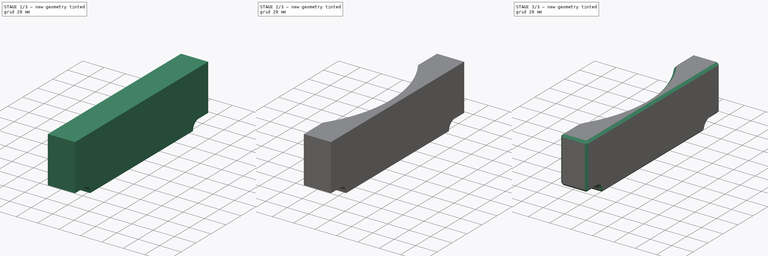
[diagram: build sequence overview — one tinted view per stage of 3, left to right]
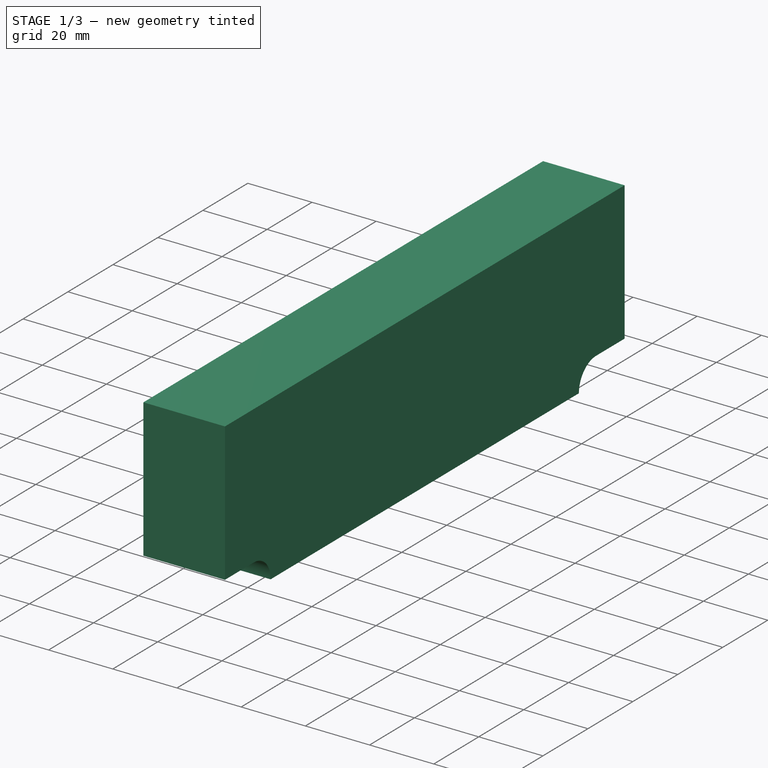
[diagram: stage 1 of 3 — iso view after this stage's code; geometry added in this stage tinted green]
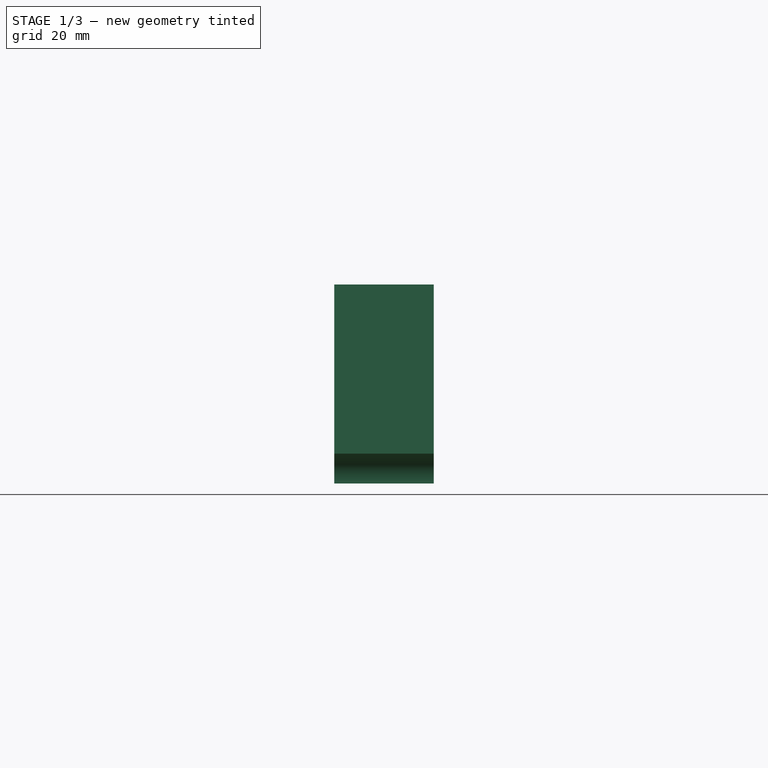
[diagram: stage 1 of 3 — front view after this stage's code; geometry added in this stage tinted green]
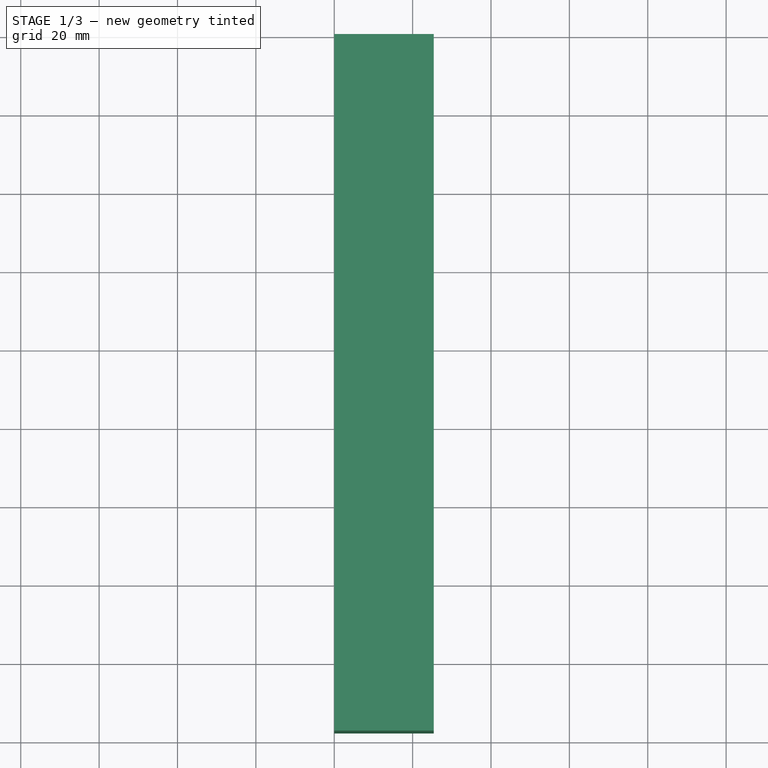
[diagram: stage 1 of 3 — top view after this stage's code; geometry added in this stage tinted green]
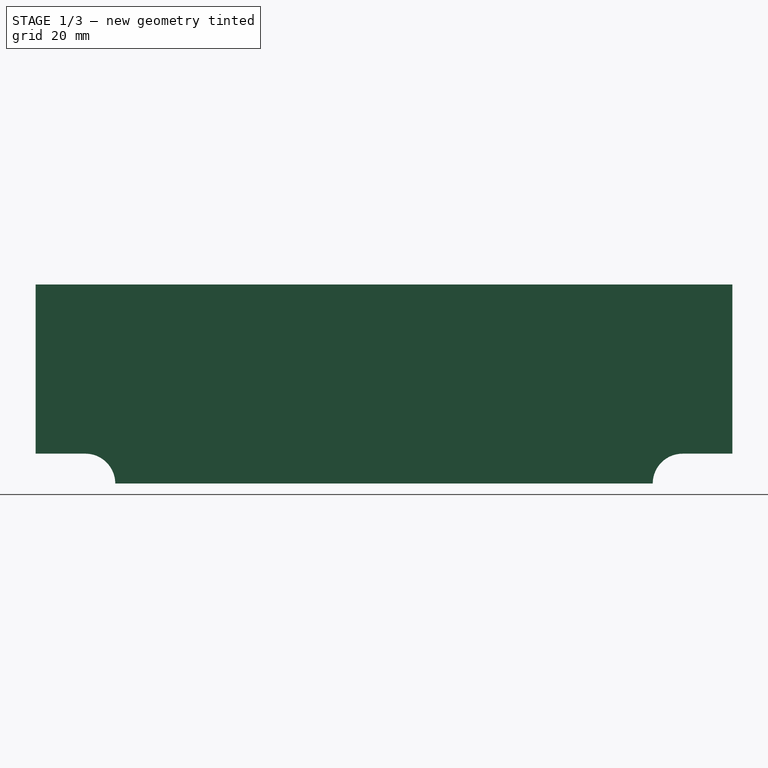
[diagram: stage 1 of 3 — right view after this stage's code; geometry added in this stage tinted green]
FCSTD DOCUMENT  (FreeCAD 1.0R38642 (Git))
Label: Towbar_Spacer
License: All rights reserved
LicenseURL: https://en.wikipedia.org/wiki/All_rights_reserved
objects: Sketcher::SketchObject×3, PartDesign::Pocket×2, PartDesign::Pad×1, PartDesign::Fillet×1, PartDesign::Chamfer×1, PartDesign::Body×1
note: 22 computed .brp shape members not serialized (recipe doc carries the construction recipe); baked Part::Feature solids carry a one-line shape summary decoded from their .brp

FEATURE [Sketcher::SketchObject] Sketch
  ArcFitTolerance = 1e-06
  AttachmentSupport = -> [XZ_Plane]
  FullyConstrained = true
  MakeInternals = false
  MapMode = 5
  Placement = pos=(0,0,0) rot=(1,0,0;1.5708rad)
  sketch-geometry (8):
    g0: LineSegment StartX=0 StartY=0 StartZ=0 EndX=25.4 EndY=0 EndZ=0
    g1: LineSegment StartX=25.4 StartY=0 StartZ=0 EndX=25.4 EndY=50.8 EndZ=0
    g2: LineSegment StartX=25.4 StartY=50.8 StartZ=0 EndX=0 EndY=50.8 EndZ=0
    g3: LineSegment StartX=0 StartY=50.8 StartZ=0 EndX=0 EndY=0 EndZ=0
    g4: GeomPoint X=0 Y=50.8 Z=0
    g5: GeomPoint X=0 Y=50.8 Z=0
    g6: GeomPoint X=0 Y=50.8 Z=0
    g7: GeomPoint X=0 Y=50.8 Z=0
  constraints (15):
    c: Coincident(g0,g-1)
    c: PointOnObject(g0,g-1)
    c: Coincident(g1,g0)
    c: Vertical(g1)
    c: Coincident(g2,g1)
    c: Horizontal(g2)
    c: Coincident(g3,g0)
    c: DistanceY(g1,g1) = 50.8
    c: Coincident(g4,g3)
    c: Coincident(g5,g2)
    c: Coincident(g6,g3)
    c: Coincident(g7,g2)
    c: Coincident(g3,g2)
    c: DistanceX(g2,g2) = 25.4
    c: DistanceX(g0,g0) = 25.4
FEATURE [PartDesign::Pad] Pad
  Direction = (0,-1,2e-16)
  Length = 177.8
  Length2 = 10
  Placement = pos=(0,0,0) rot=(1,0,0;1.5708rad)
  Profile = -> Sketch
  ReferenceAxis = -> Sketch [N_Axis]
  Refine = true
  Suppressed = false
  Type = 0
FEATURE [Sketcher::SketchObject] Sketch001
  ArcFitTolerance = 1e-06
  AttachmentSupport = -> [Pad]
  ExternalGeometry = -> [Pad]
  FullyConstrained = true
  MakeInternals = false
  MapMode = 5
  Placement = pos=(25.4,0,0) rot=(0.707107,0,0.707107;3.14159rad)
  sketch-geometry (8):
    g0: ArcOfCircle CenterX=3.67e-14 CenterY=165.1 CenterZ=0 NormalX=0 NormalY=0 NormalZ=1 AngleXU=0 Radius=7.62 StartAngle=4.71239 EndAngle=6.28319
    g1: ArcOfCircle CenterX=2.8e-15 CenterY=12.7 CenterZ=0 NormalX=0 NormalY=0 NormalZ=1 AngleXU=0 Radius=7.62 StartAngle=4.99e-14 EndAngle=1.5708
    g2: LineSegment StartX=7.62 StartY=165.1 StartZ=0 EndX=7.62 EndY=177.8 EndZ=0
    g3: LineSegment StartX=7.62 StartY=12.7 StartZ=0 EndX=7.62 EndY=-1.8e-15 EndZ=0
    g4: LineSegment StartX=3.53e-14 StartY=157.48 StartZ=0 EndX=3.95e-14 EndY=177.8 EndZ=0
    g5: LineSegment StartX=3.95e-14 StartY=177.8 StartZ=0 EndX=7.62 EndY=177.8 EndZ=0
    g6: LineSegment StartX=5e-15 StartY=20.32 StartZ=0 EndX=0 EndY=0 EndZ=0
    g7: LineSegment StartX=0 StartY=0 StartZ=0 EndX=7.62 EndY=-1.8e-15 EndZ=0
  constraints (22):
    c: PointOnObject(g0,g-6)
    c: PointOnObject(g0,g-6)
    c: PointOnObject(g1,g-6)
    c: PointOnObject(g1,g-6)
    c: Radius(g0) = 7.62
    c: Radius(g1) = 7.62
    c: PointOnObject(g2,g-3)
    c: Vertical(g2)
    c: PointOnObject(g3,g-5)
    c: Vertical(g3)
    c: Tangent(g3,g1) = 1.5708
    c: Tangent(g2,g0) = -1.5708
    c: Coincident(g4,g0)
    c: Coincident(g4,g-6)
    c: Coincident(g5,g4)
    c: Coincident(g5,g2)
    c: Coincident(g6,g1)
    c: Coincident(g6,g-1)
    c: Coincident(g7,g6)
    c: Coincident(g7,g3)
    c: DistanceY(g1,g0) = 137.16
    c: Equal(g4,g6)
FEATURE [PartDesign::Pocket] Pocket
  BaseFeature = -> Pad
  Direction = (-1,0,2e-16)
  Length = 5
  Length2 = 5
  Placement = pos=(0,0,0) rot=(1,0,0;1.5708rad)
  Profile = -> Sketch001 [Edge1,Edge2,Edge3,Edge4,Edge5,Edge6,Edge7,Edge8]
  ReferenceAxis = -> Sketch001 [N_Axis]
  Refine = true
  Suppressed = false
  Type = 1
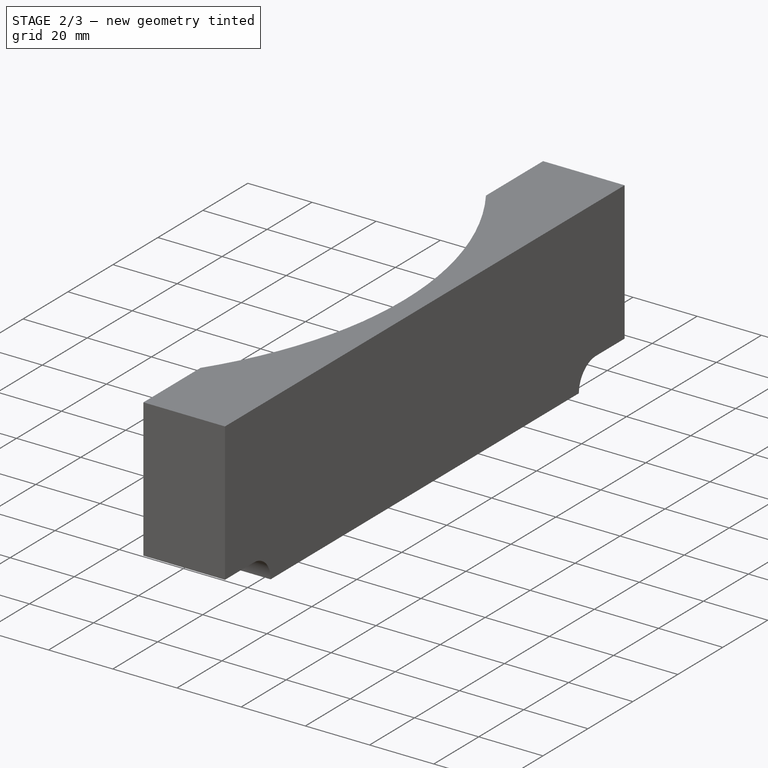
[diagram: stage 2 of 3 — iso view after this stage's code; geometry added in this stage tinted green]
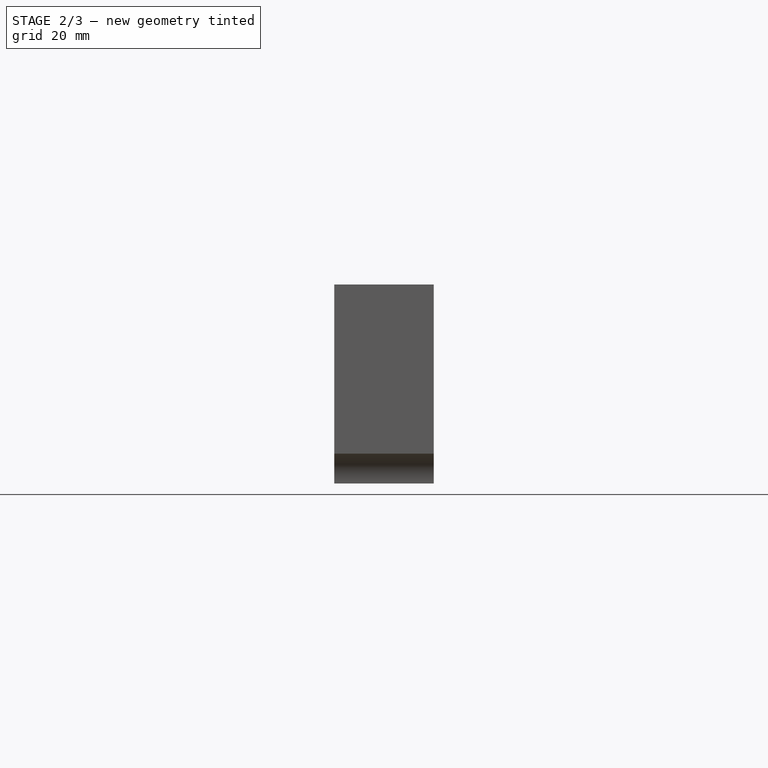
[diagram: stage 2 of 3 — front view after this stage's code; geometry added in this stage tinted green]
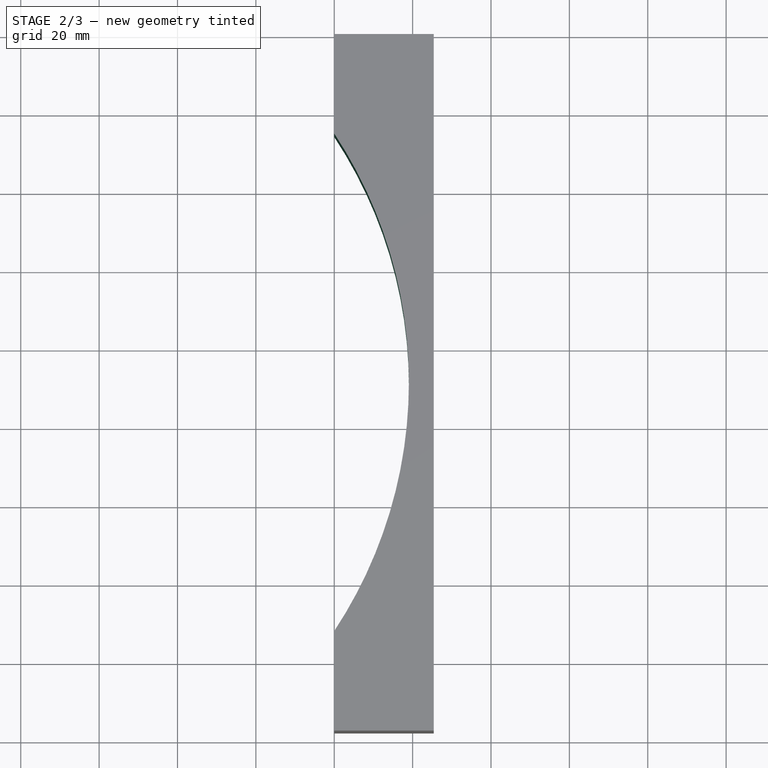
[diagram: stage 2 of 3 — top view after this stage's code; geometry added in this stage tinted green]
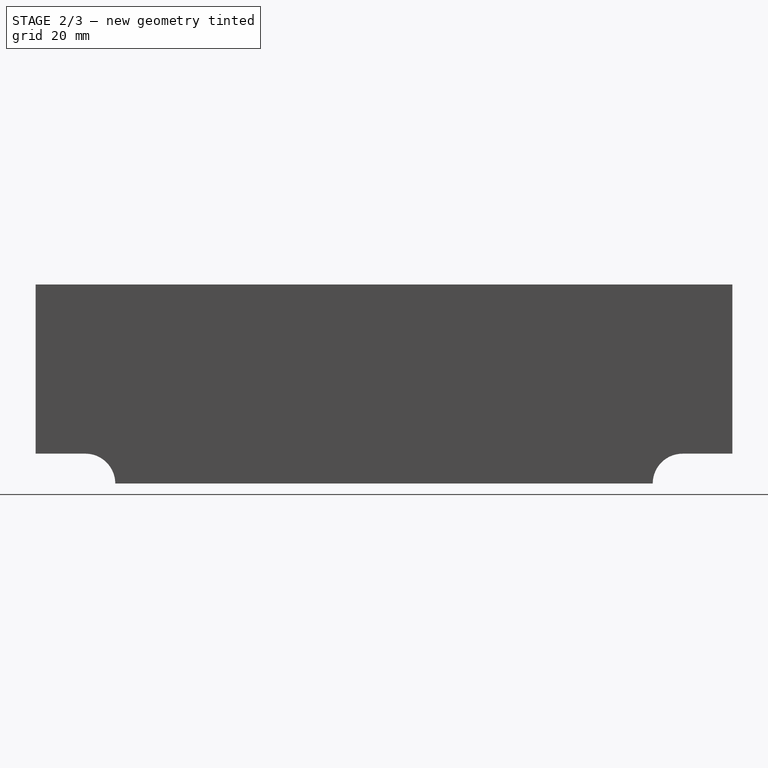
[diagram: stage 2 of 3 — right view after this stage's code; geometry added in this stage tinted green]
FEATURE [Sketcher::SketchObject] Sketch002
  ArcFitTolerance = 1e-06
  AttachmentSupport = -> [Pocket]
  ExternalGeometry = -> [Pocket]
  FullyConstrained = true
  MakeInternals = false
  MapMode = 5
  Placement = pos=(0,1.13e-14,50.8) rot=(0,0,1;3.14159rad)
  sketch-geometry (4):
    g0: LineSegment StartX=0 StartY=0 StartZ=0 EndX=1.42e-14 EndY=25.4 EndZ=0
    g1: LineSegment StartX=0 StartY=177.8 StartZ=0 EndX=-1.42e-14 EndY=152.4 EndZ=0
    g2: ArcOfCircle CenterX=96.3083 CenterY=88.9 CenterZ=0 NormalX=0 NormalY=0 NormalZ=1 AngleXU=0 Radius=115.358 StartAngle=2.55868 EndAngle=3.72451
    g3: LineSegment StartX=1.42e-14 StartY=25.4 StartZ=0 EndX=-1.42e-14 EndY=152.4 EndZ=0
  constraints (11):
    c: Coincident(g0,g-1)
    c: PointOnObject(g0,g-5)
    c: Coincident(g1,g-5)
    c: PointOnObject(g1,g-5)
    c: Coincident(g2,g1)
    c: Coincident(g2,g0)
    c: DistanceY(g1,g1) = 25.4
    c: DistanceY(g0,g0) = 25.4
    c: Distance(g2,g-3) = 6.35
    c: Coincident(g3,g0)
    c: Coincident(g3,g1)
FEATURE [PartDesign::Pocket] Pocket001
  BaseFeature = -> Pocket
  Direction = (0,0,-1)
  Length = 5
  Length2 = 5
  Placement = pos=(0,0,0) rot=(1,0,0;1.5708rad)
  Profile = -> Sketch002 [Edge3,Edge1]
  ReferenceAxis = -> Sketch002 [N_Axis]
  Refine = true
  Suppressed = false
  Type = 1
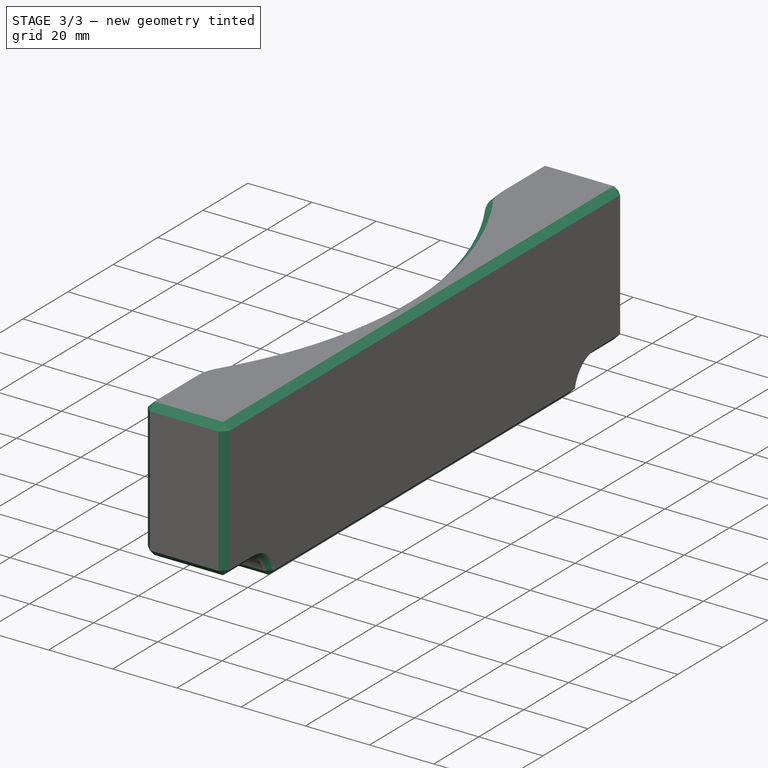
[diagram: stage 3 of 3 — iso view after this stage's code; geometry added in this stage tinted green]
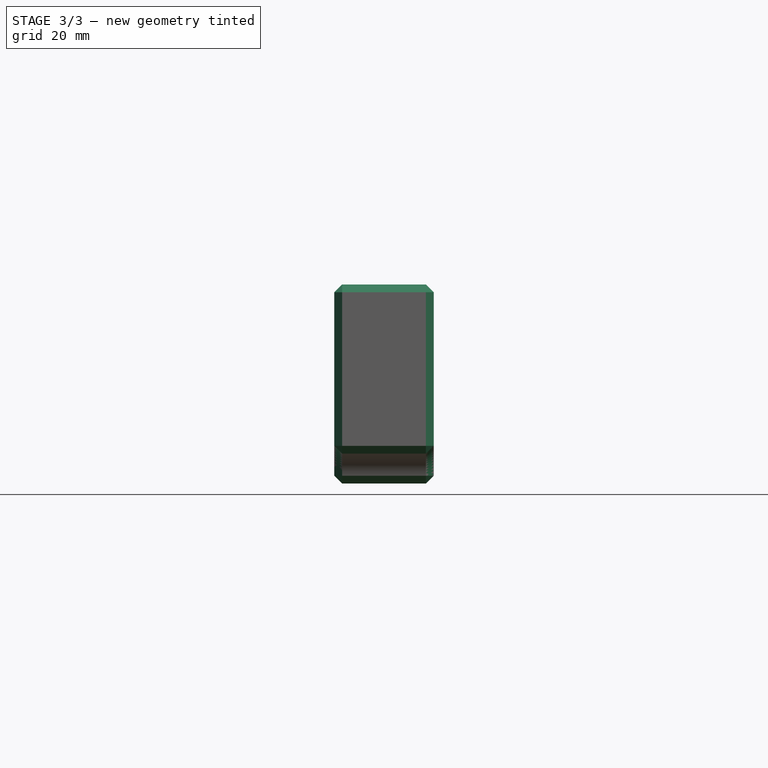
[diagram: stage 3 of 3 — front view after this stage's code; geometry added in this stage tinted green]
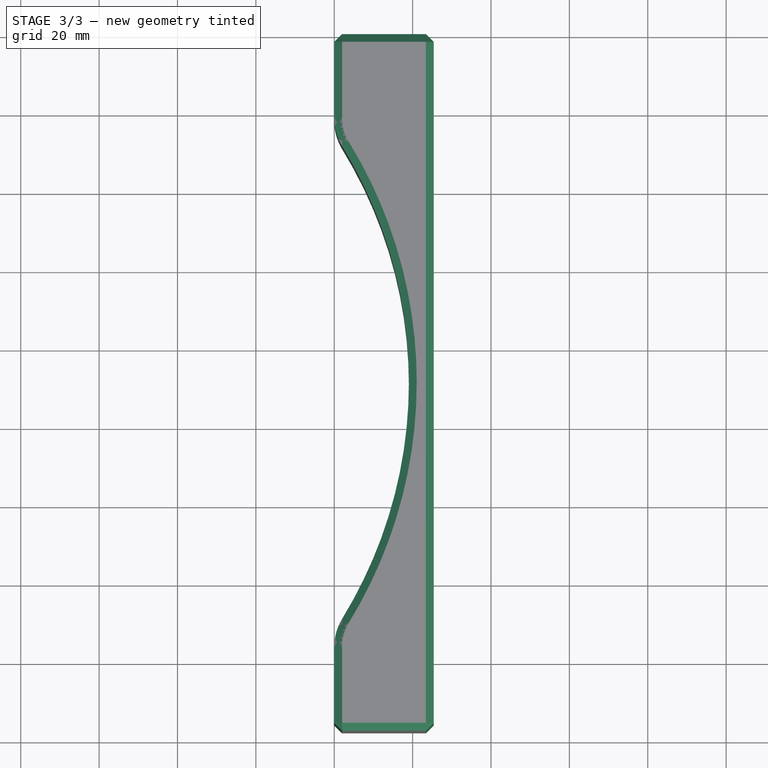
[diagram: stage 3 of 3 — top view after this stage's code; geometry added in this stage tinted green]
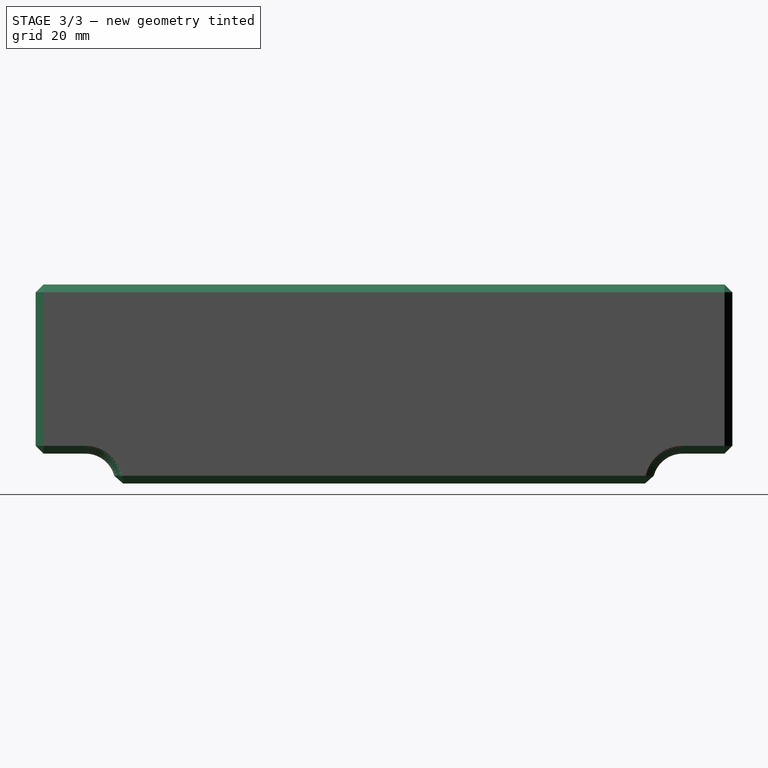
[diagram: stage 3 of 3 — right view after this stage's code; geometry added in this stage tinted green]
FEATURE [PartDesign::Fillet] Fillet
  Base = -> Pocket001 [Edge16,Edge21]
  BaseFeature = -> Pocket001
  Placement = pos=(0,0,0) rot=(1,0,0;1.5708rad)
  Radius = 14
  Refine = true
  SupportTransform = false
  Suppressed = false
  UseAllEdges = false
FEATURE [PartDesign::Chamfer] Chamfer
  Angle = 45
  Base = -> Fillet [Edge33,Edge23,Edge34,Edge11,Edge14,Edge18,Edge26,Edge30,Edge32,Edge22,Edge36,Edge13,Edge35,Edge24,Edge5,Edge16,Edge25,Edge20,Edge21,Edge31,Edge28,Edge10,Edge12,Edge7,Edge4,Edge2,Edge6,Edge8,Edge1,Edge3]
  BaseFeature = -> Fillet
  ChamferType = 0
  FlipDirection = false
  Placement = pos=(0,0,0) rot=(1,0,0;1.5708rad)
  Refine = true
  Size = 2
  Size2 = 1
  SupportTransform = false
  Suppressed = false
  UseAllEdges = false
FEATURE [PartDesign::Body] Body
  AllowCompound = false
  Group = -> [Sketch,Pad,Sketch001,Pocket,Sketch002,Pocket001,Fillet,Chamfer]
  Origin = -> Origin
  Tip = -> Chamfer
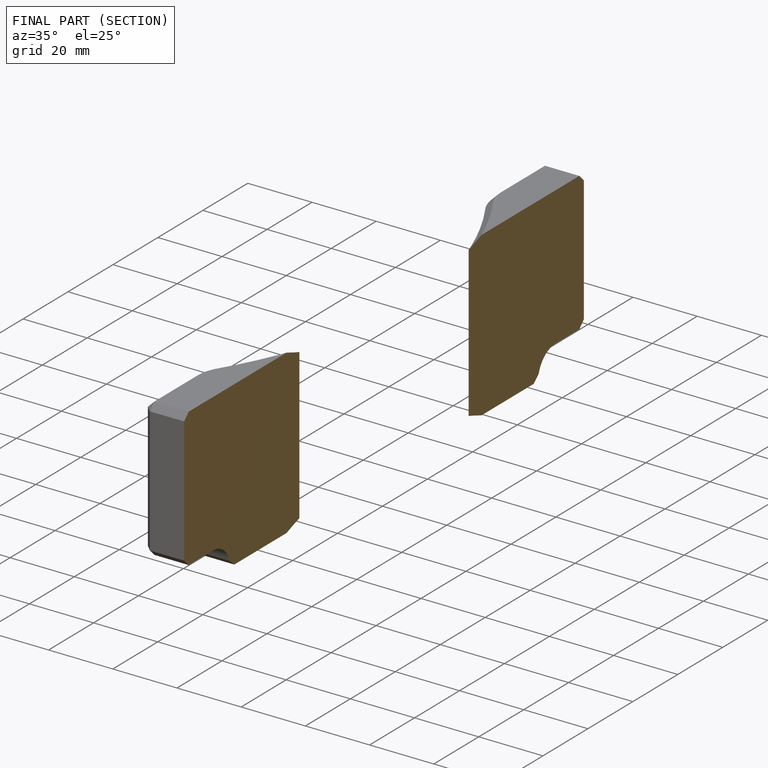
[diagram: finished part — half-section view (interior)]
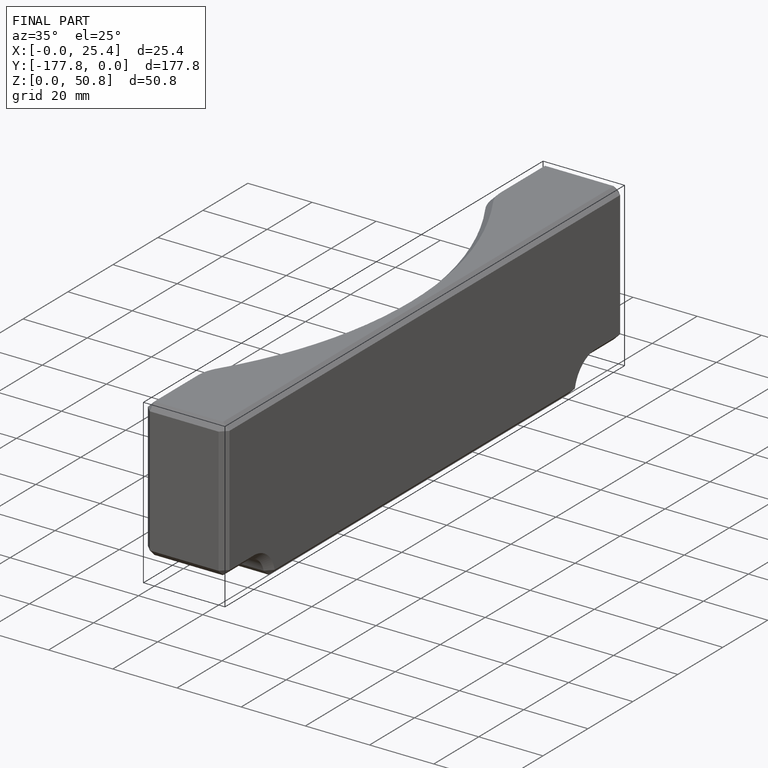
[diagram: finished part — iso view with bounding-box wireframe]
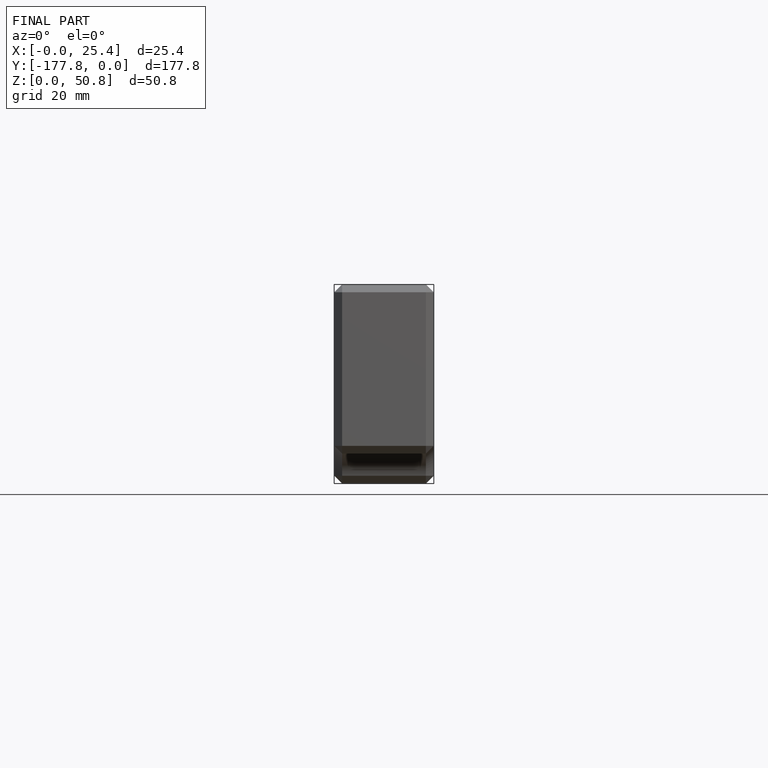
[diagram: finished part — front view with bounding-box wireframe]
